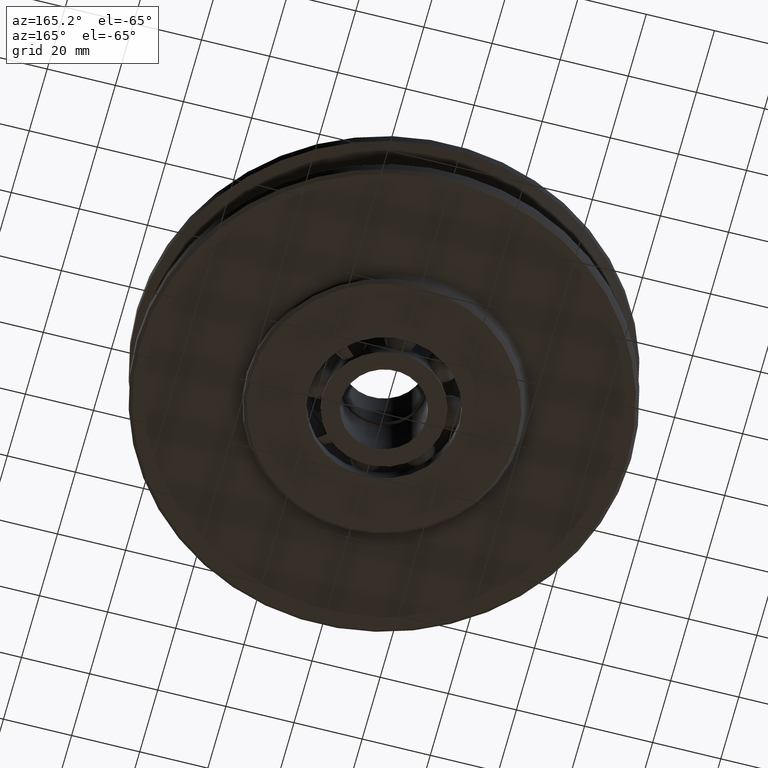
[diagram: clean part render]
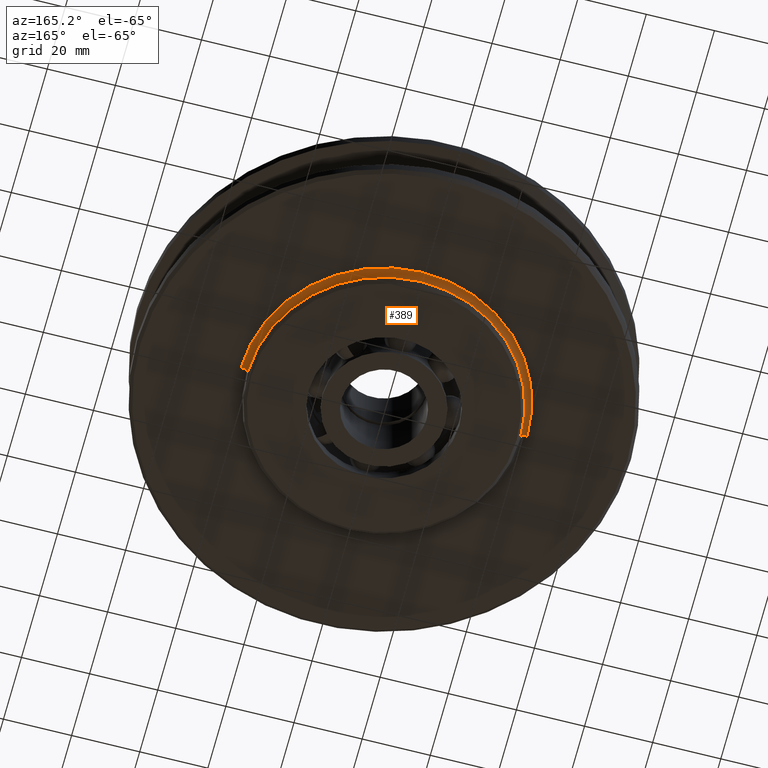
[diagram: same view with one face highlighted and labeled with its STEP entity id]
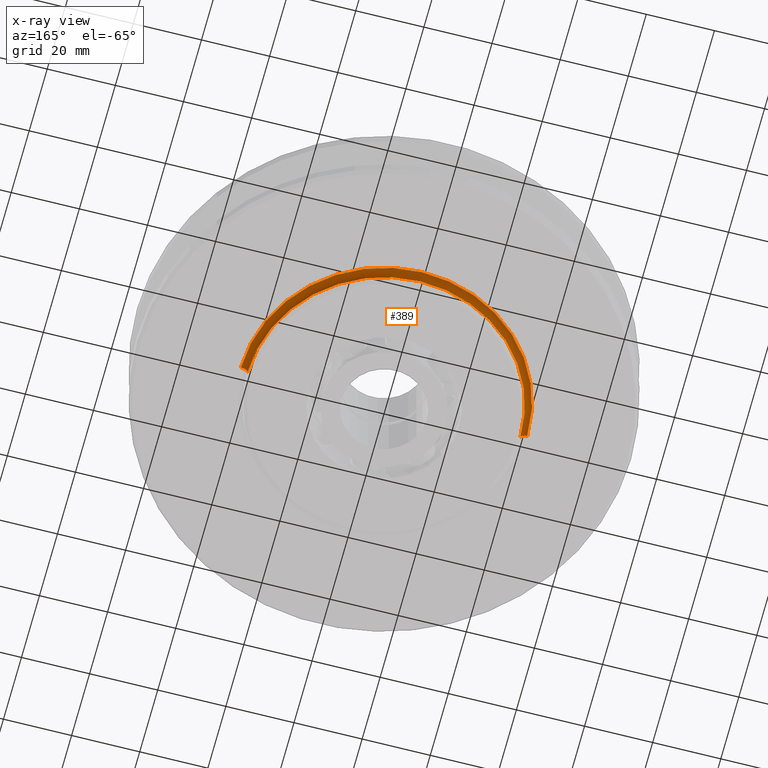
[diagram: x-ray of the same camera — body ghosted, the highlighted face saturated]
A machine part, auxiliary view. The second image highlights one B-rep face of the part: STEP entity #389.
The next image is the same camera in x-ray: the body ghosted, the highlighted face saturated — about 0% of this face is hidden behind the body in this view.
In plain terms, the highlighted toroidal blend (fillet) surface has major radius 42 mm and minor (blend) radius 2 mm.
Its self-contained STEP definition (entity closure, byte-faithful):
#389=ADVANCED_FACE('',(#801),#802,.F.);
#801=FACE_OUTER_BOUND('',#1211,.T.);
#802=TOROIDAL_SURFACE('',#1212,42.0,2.0);
#1211=EDGE_LOOP('',(#2507,#2508,#2509,#2510));
#1212=AXIS2_PLACEMENT_3D('',#2511,#2512,#2513);
#2507=ORIENTED_EDGE('',*,*,#2673,.T.);
#2508=ORIENTED_EDGE('',*,*,#3091,.F.);
#2509=ORIENTED_EDGE('',*,*,#2675,.T.);
#2510=ORIENTED_EDGE('',*,*,#2681,.T.);
#2511=CARTESIAN_POINT('',(0.0,0.0,-14.0));
#2512=DIRECTION('',(0.0,0.0,1.0));
#2513=DIRECTION('',(1.0,0.0,0.0));
#2673=EDGE_CURVE('',#3290,#3291,#3292,.T.);
#2675=EDGE_CURVE('',#3295,#3293,#3296,.T.);
#2681=EDGE_CURVE('',#3293,#3290,#3304,.T.);
#3091=EDGE_CURVE('',#3295,#3291,#3908,.T.);
#3290=VERTEX_POINT('',#4819);
#3291=VERTEX_POINT('',#4820);
#3292=CIRCLE('',#4821,2.0);
#3293=VERTEX_POINT('',#4822);
#3295=VERTEX_POINT('',#4824);
#3296=CIRCLE('',#4825,2.0);
#3304=CIRCLE('',#4835,40.0);
#3908=CIRCLE('',#7827,42.0);
#4819=CARTESIAN_POINT('',(-40.0,4.89858719658941E-015,-14.0));
#4820=CARTESIAN_POINT('',(-42.0,5.14351655641888E-015,-12.0));
#4821=AXIS2_PLACEMENT_3D('',#7984,#7985,#7986);
#4822=CARTESIAN_POINT('',(40.0,0.0,-14.0));
#4824=CARTESIAN_POINT('',(42.0,0.0,-12.0));
#4825=AXIS2_PLACEMENT_3D('',#7990,#7991,#7992);
#4835=AXIS2_PLACEMENT_3D('',#8001,#8002,#8003);
#7827=AXIS2_PLACEMENT_3D('',#8442,#8443,#8444);
#7984=CARTESIAN_POINT('',(-42.0,5.14351655641888E-015,-14.0));
#7985=DIRECTION('',(-1.22464679914735E-016,-1.0,0.0));
#7986=DIRECTION('',(-1.0,1.22464679914735E-016,-0.0));
#7990=CARTESIAN_POINT('',(42.0,-5.14351655641888E-015,-14.0));
#7991=DIRECTION('',(-1.22464679914735E-016,-1.0,0.0));
#7992=DIRECTION('',(1.0,-1.22464679914735E-016,0.0));
#8001=CARTESIAN_POINT('',(0.0,0.0,-14.0));
#8002=DIRECTION('',(0.0,0.0,1.0));
#8003=DIRECTION('',(1.0,0.0,0.0));
#8442=CARTESIAN_POINT('',(0.0,0.0,-12.0));
#8443=DIRECTION('',(0.0,0.0,1.0));
#8444=DIRECTION('',(1.0,0.0,0.0));